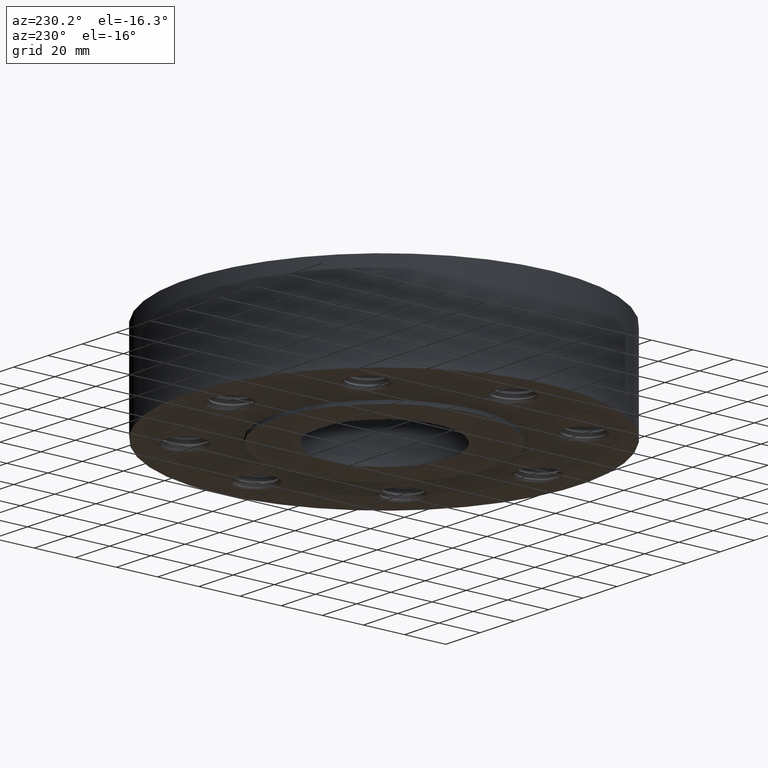
[diagram: clean part render]
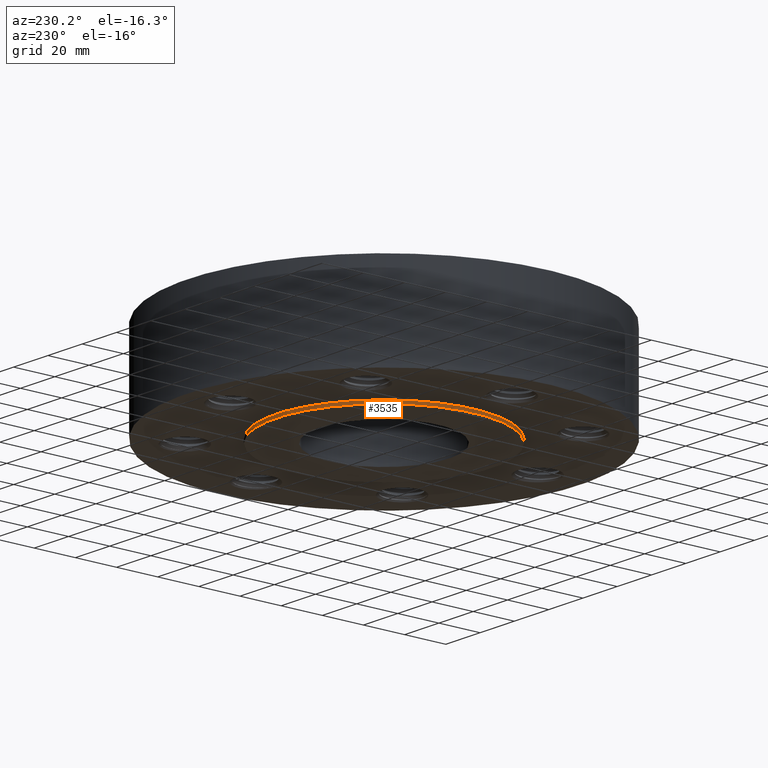
[diagram: same view with one face highlighted and labeled with its STEP entity id]
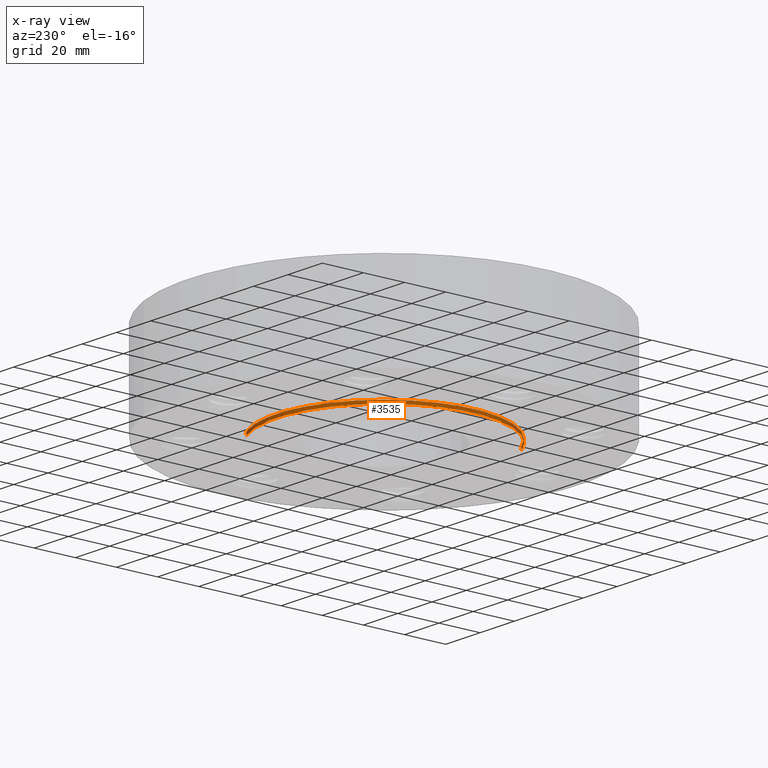
[diagram: x-ray of the same camera — body ghosted, the highlighted face saturated]
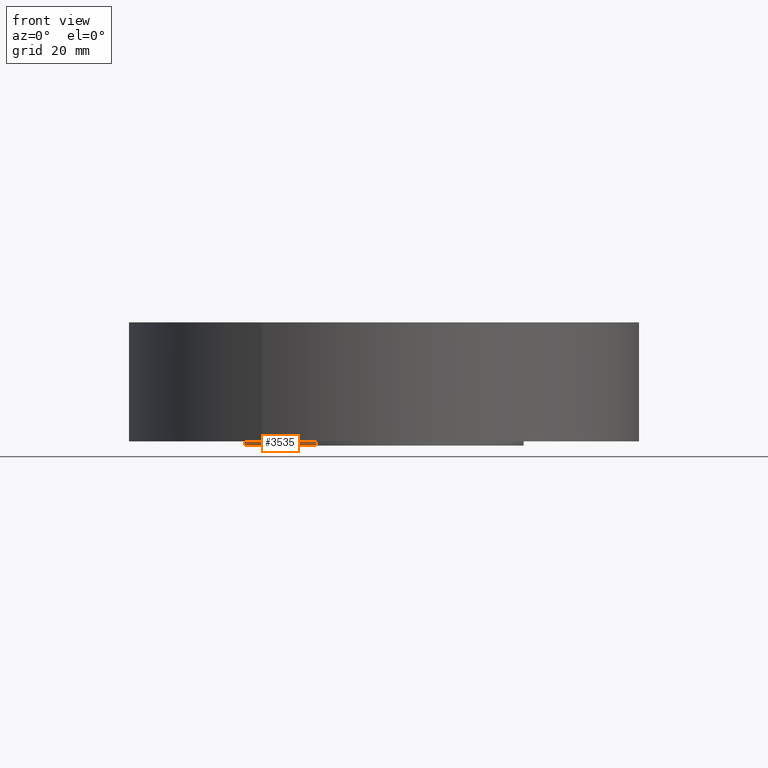
[diagram: same view with one face highlighted and labeled with its STEP entity id]
A machine part, auxiliary view. The second image highlights one B-rep face of the part: STEP entity #3535.
The next image is the same camera in x-ray: the body ghosted, the highlighted face saturated — about 0% of this face is hidden behind the body in this view.
A second angle (front view) of the same face is appended — the face is thin or edge-on in the first view.
In plain terms, the highlighted cylindrical surface (partial cylindrical patch) has radius 52.324 mm, axis along (0, 0, -1).
Its self-contained STEP definition (entity closure, byte-faithful):
#3316=AXIS2_PLACEMENT_3D('Circle Axis2P3D',#3314,#3315,$) ;
#3496=AXIS2_PLACEMENT_3D('Cylinder Axis2P3D',#3493,#3494,#3495) ;
#3526=AXIS2_PLACEMENT_3D('Circle Axis2P3D',#3524,#3525,$) ;
#3309=CARTESIAN_POINT('Vertex',(0.987616609529,1.8078200775,-2.81139940724E-014)) ;
#3311=CARTESIAN_POINT('Vertex',(-0.987616609529,-1.8078200775,-2.81139940724E-014)) ;
#3314=CARTESIAN_POINT('Axis2P3D Location',(0.,0.,0.)) ;
#3493=CARTESIAN_POINT('Axis2P3D Location',(0.,0.,0.843750000003)) ;
#3502=CARTESIAN_POINT('Vertex',(0.987616609529,1.8078200775,-0.0625000000003)) ;
#3504=CARTESIAN_POINT('Vertex',(-0.987616609529,-1.8078200775,-0.0625000000003)) ;
#3507=CARTESIAN_POINT('Line Origine',(0.987616609529,1.8078200775,-0.0312500000002)) ;
#3512=CARTESIAN_POINT('Line Origine',(-0.987616609529,-1.8078200775,-0.0312500000002)) ;
#3524=CARTESIAN_POINT('Axis2P3D Location',(0.,0.,-0.0625000000003)) ;
#3315=DIRECTION('Axis2P3D Direction',(0.,0.,-0.0393700787402)) ;
#3494=DIRECTION('Axis2P3D Direction',(0.,0.,-0.0393700787402)) ;
#3495=DIRECTION('Axis2P3D XDirection',(-0.0188750212049,-0.0345504945626,0.)) ;
#3508=DIRECTION('Vector Direction',(0.,0.,-0.0393700787402)) ;
#3513=DIRECTION('Vector Direction',(0.,0.,-0.0393700787402)) ;
#3525=DIRECTION('Axis2P3D Direction',(0.,0.,-0.0393700787402)) ;
#3509=VECTOR('Line Direction',#3508,0.0393700787402) ;
#3514=VECTOR('Line Direction',#3513,0.0393700787402) ;
#3530=ORIENTED_EDGE('',*,*,#3528,.F.) ;
#3531=ORIENTED_EDGE('',*,*,#3516,.T.) ;
#3532=ORIENTED_EDGE('',*,*,#3318,.T.) ;
#3533=ORIENTED_EDGE('',*,*,#3511,.F.) ;
#3535=ADVANCED_FACE('PartBody',(#3534),#3497,.T.) ;
#3317=CIRCLE('generated circle',#3316,2.06000000001) ;
#3527=CIRCLE('generated circle',#3526,2.06000000001) ;
#3497=CYLINDRICAL_SURFACE('generated cylinder',#3496,2.06000000001) ;
#3318=EDGE_CURVE('',#3312,#3310,#3317,.T.) ;
#3511=EDGE_CURVE('',#3503,#3310,#3510,.F.) ;
#3516=EDGE_CURVE('',#3505,#3312,#3515,.F.) ;
#3528=EDGE_CURVE('',#3505,#3503,#3527,.T.) ;
#3529=EDGE_LOOP('',(#3530,#3531,#3532,#3533)) ;
#3534=FACE_OUTER_BOUND('',#3529,.T.) ;
#3510=LINE('Line',#3507,#3509) ;
#3515=LINE('Line',#3512,#3514) ;
#3310=VERTEX_POINT('',#3309) ;
#3312=VERTEX_POINT('',#3311) ;
#3503=VERTEX_POINT('',#3502) ;
#3505=VERTEX_POINT('',#3504) ;